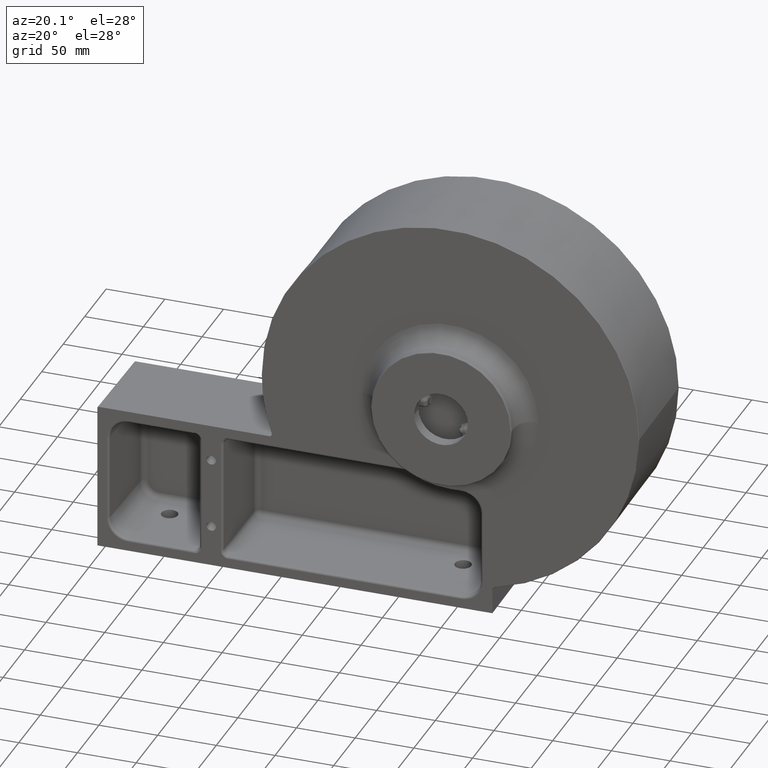
[diagram: clean part render]
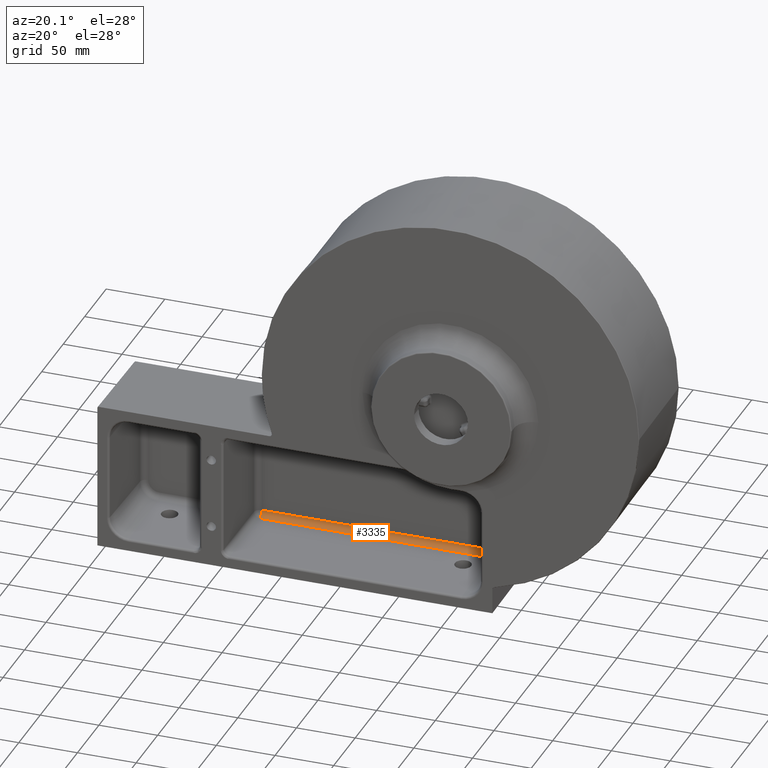
[diagram: same view with one face highlighted and labeled with its STEP entity id]
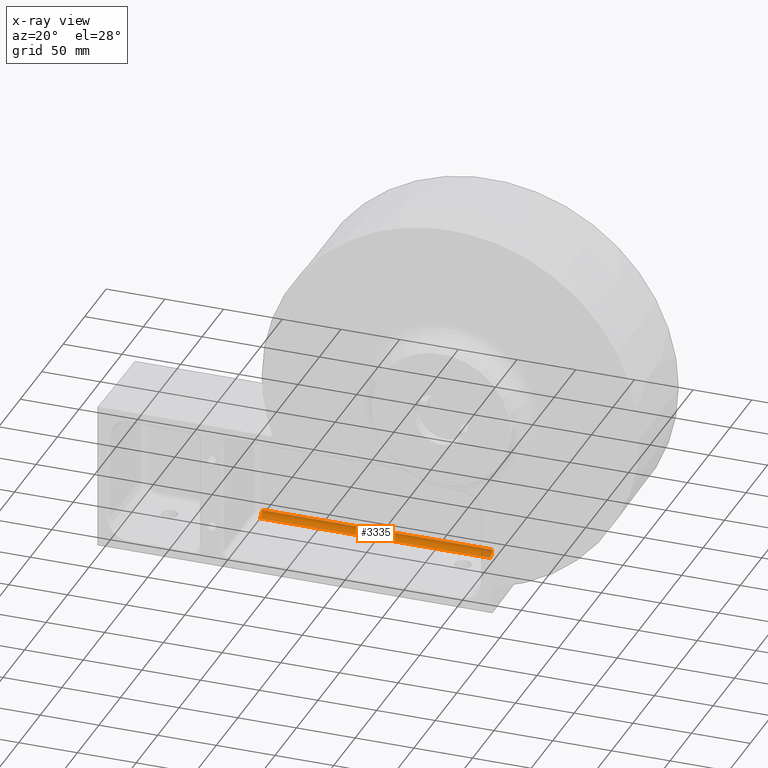
[diagram: x-ray of the same camera — body ghosted, the highlighted face saturated]
A machine part, auxiliary view. The second image highlights one B-rep face of the part: STEP entity #3335.
The next image is the same camera in x-ray: the body ghosted, the highlighted face saturated — about 4% of this face is hidden behind the body in this view.
In plain terms, the highlighted cylindrical surface (edge-blend (fillet) strip) has radius 5 mm, axis along (1, -0, -0).
Its self-contained STEP definition (entity closure, byte-faithful):
#13 = LINE ( 'NONE', #3000, #5310 ) ;
#174 = CARTESIAN_POINT ( 'NONE',  ( 9.241783762214511810, 88.93027571429202283, -168.2421159172879186 ) ) ;
#210 = ORIENTED_EDGE ( 'NONE', *, *, #2290, .T. ) ;
#1150 = ORIENTED_EDGE ( 'NONE', *, *, #2869, .F. ) ;
#1494 = LINE ( 'NONE', #3735, #5805 ) ;
#1633 = DIRECTION ( 'NONE',  ( 1.958674375096039216E-16, 0.0000000000000000000, 1.000000000000000000 ) ) ;
#2202 = AXIS2_PLACEMENT_3D ( 'NONE', #5320, #8300, #1633 ) ;
#2240 = CYLINDRICAL_SURFACE ( 'NONE', #2202, 5.000000000000004441 ) ;
#2289 = EDGE_CURVE ( 'NONE', #5179, #8968, #1494, .T. ) ;
#2290 = EDGE_CURVE ( 'NONE', #5312, #3743, #13, .T. ) ;
#2478 = CARTESIAN_POINT ( 'NONE',  ( 9.241783762214513587, 88.79939097275266136, -163.2438292924101120 ) ) ;
#2755 = ORIENTED_EDGE ( 'NONE', *, *, #3002, .F. ) ;
#2869 = EDGE_CURVE ( 'NONE', #5179, #3743, #3455, .T. ) ;
#3000 = CARTESIAN_POINT ( 'NONE',  ( -274.2417837622145385, 93.79939097275268978, -163.2438292924100836 ) ) ;
#3002 = EDGE_CURVE ( 'NONE', #5312, #8968, #9041, .T. ) ;
#3115 = CARTESIAN_POINT ( 'NONE',  ( -186.9856130546246220, 88.79939097275268978, -163.2438292924101120 ) ) ;
#3335 = ADVANCED_FACE ( 'NONE', ( #8911 ), #2240, .F. ) ;
#3455 = CIRCLE ( 'NONE', #7644, 5.000000000000004441 ) ;
#3608 = AXIS2_PLACEMENT_3D ( 'NONE', #2478, #5435, #8417 ) ;
#3735 = CARTESIAN_POINT ( 'NONE',  ( 9.241783762214511810, 88.93027571429203704, -168.2421159172879186 ) ) ;
#3743 = VERTEX_POINT ( 'NONE', #5655 ) ;
#4875 = EDGE_LOOP ( 'NONE', ( #9394, #2755, #210, #1150 ) ) ;
#5179 = VERTEX_POINT ( 'NONE', #8491 ) ;
#5310 = VECTOR ( 'NONE', #5971, 1000.000000000000000 ) ;
#5312 = VERTEX_POINT ( 'NONE', #9155 ) ;
#5320 = CARTESIAN_POINT ( 'NONE',  ( -2.117766626157617083E-14, 88.79939097275266136, -163.2438292924101404 ) ) ;
#5435 = DIRECTION ( 'NONE',  ( -1.000000000000000000, -0.0000000000000000000, 3.470636252316193745E-16 ) ) ;
#5655 = CARTESIAN_POINT ( 'NONE',  ( -186.9856130546245936, 93.79939097275267557, -163.2438292924101120 ) ) ;
#5805 = VECTOR ( 'NONE', #6703, 1000.000000000000000 ) ;
#5971 = DIRECTION ( 'NONE',  ( -1.000000000000000000, 1.242786967863980845E-16, 1.958674375096039709E-16 ) ) ;
#6080 = DIRECTION ( 'NONE',  ( 1.000000000000000000, -1.242786967863980845E-16, -1.958674375096039709E-16 ) ) ;
#6703 = DIRECTION ( 'NONE',  ( 1.000000000000000000, -1.242786967863980845E-16, -1.958674375096039709E-16 ) ) ;
#7644 = AXIS2_PLACEMENT_3D ( 'NONE', #3115, #6080, #9051 ) ;
#8300 = DIRECTION ( 'NONE',  ( 1.000000000000000000, -1.242786967863980845E-16, -1.958674375096039709E-16 ) ) ;
#8417 = DIRECTION ( 'NONE',  ( 3.469446951953611231E-16, 0.0000000000000000000, 1.000000000000000000 ) ) ;
#8491 = CARTESIAN_POINT ( 'NONE',  ( -186.9856130546246220, 88.93027571429206546, -168.2421159172878902 ) ) ;
#8911 = FACE_OUTER_BOUND ( 'NONE', #4875, .T. ) ;
#8968 = VERTEX_POINT ( 'NONE', #174 ) ;
#9041 = CIRCLE ( 'NONE', #3608, 5.000000000000004441 ) ;
#9051 = DIRECTION ( 'NONE',  ( 0.0000000000000000000, 0.0000000000000000000, 1.000000000000000000 ) ) ;
#9155 = CARTESIAN_POINT ( 'NONE',  ( 9.241783762214513587, 93.79939097275266136, -163.2438292924101120 ) ) ;
#9394 = ORIENTED_EDGE ( 'NONE', *, *, #2289, .T. ) ;